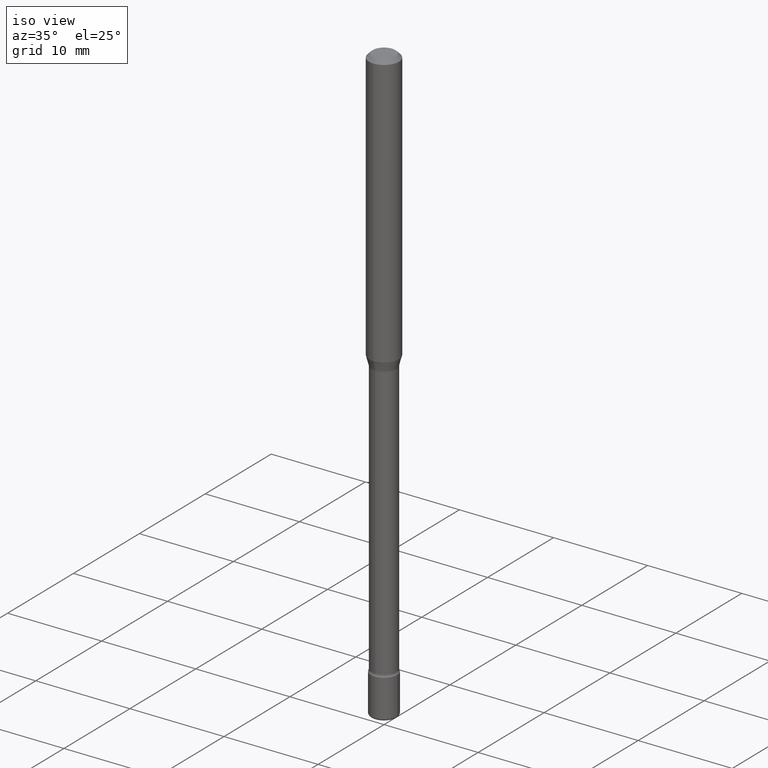
[diagram: clean part render]
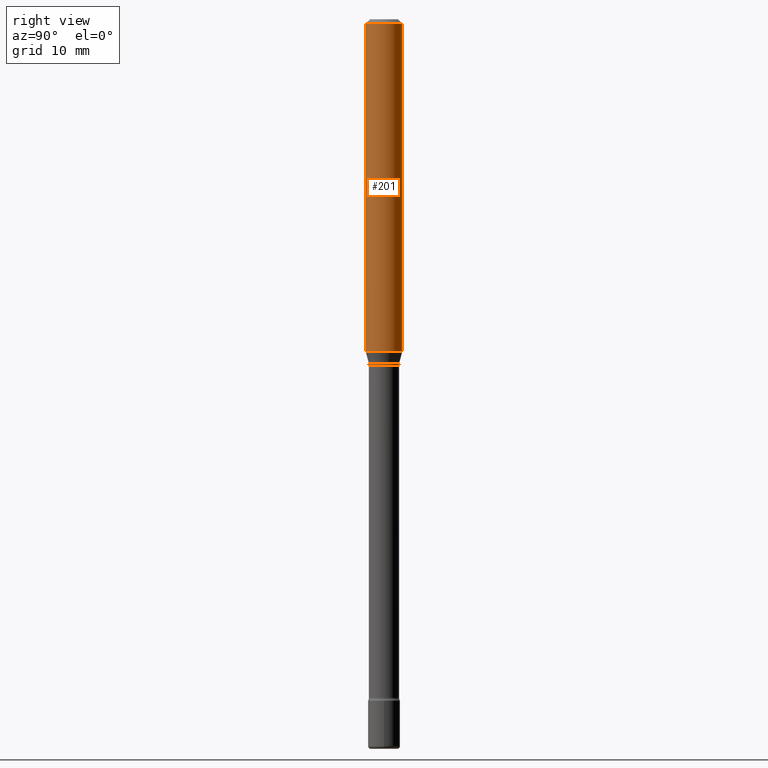
[diagram: tour spotlight — one face highlighted and labeled with its STEP entity id]
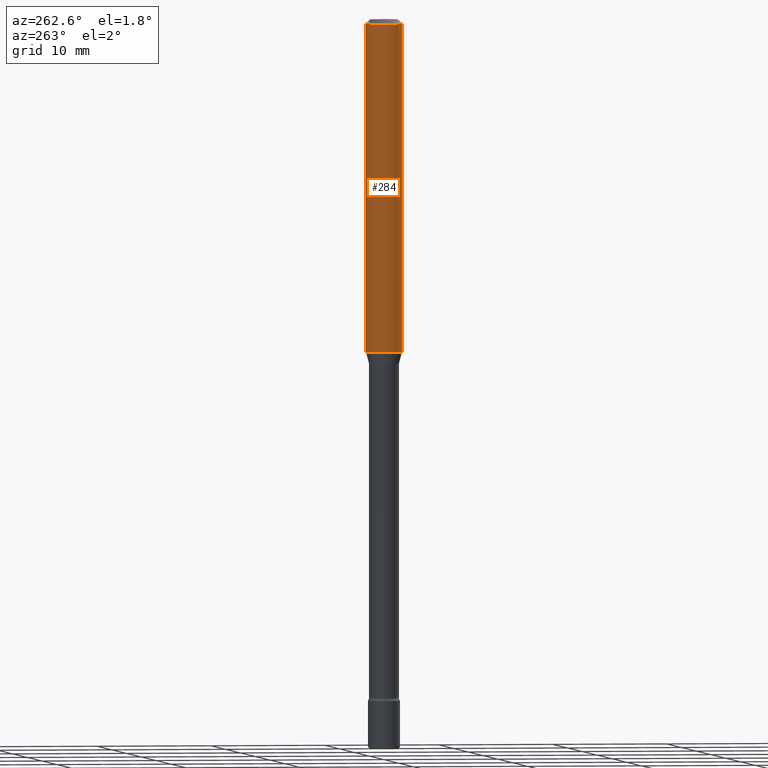
[diagram: tour spotlight — one face highlighted and labeled with its STEP entity id]
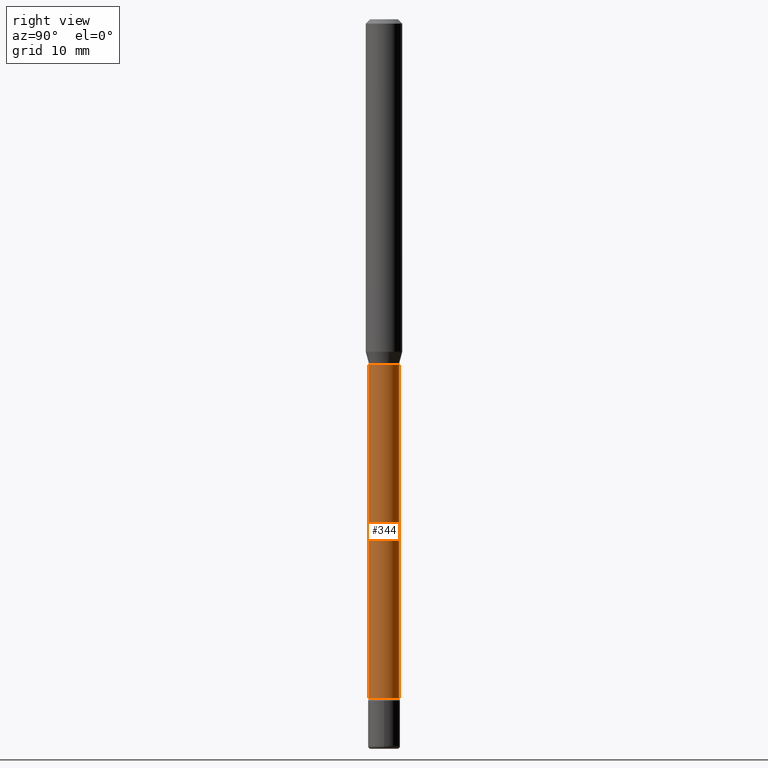
[diagram: tour spotlight — one face highlighted and labeled with its STEP entity id]
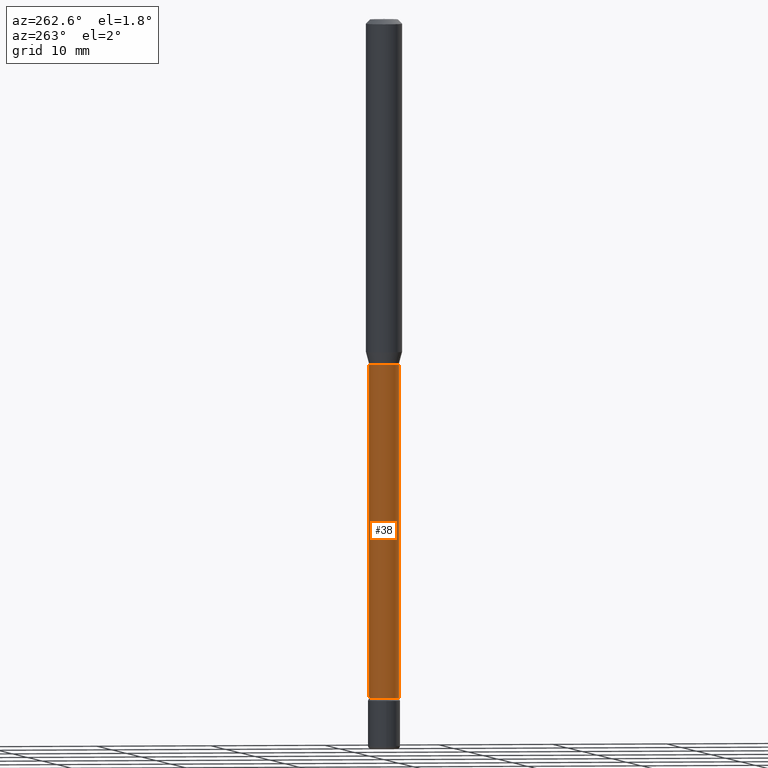
[diagram: tour spotlight — one face highlighted and labeled with its STEP entity id]
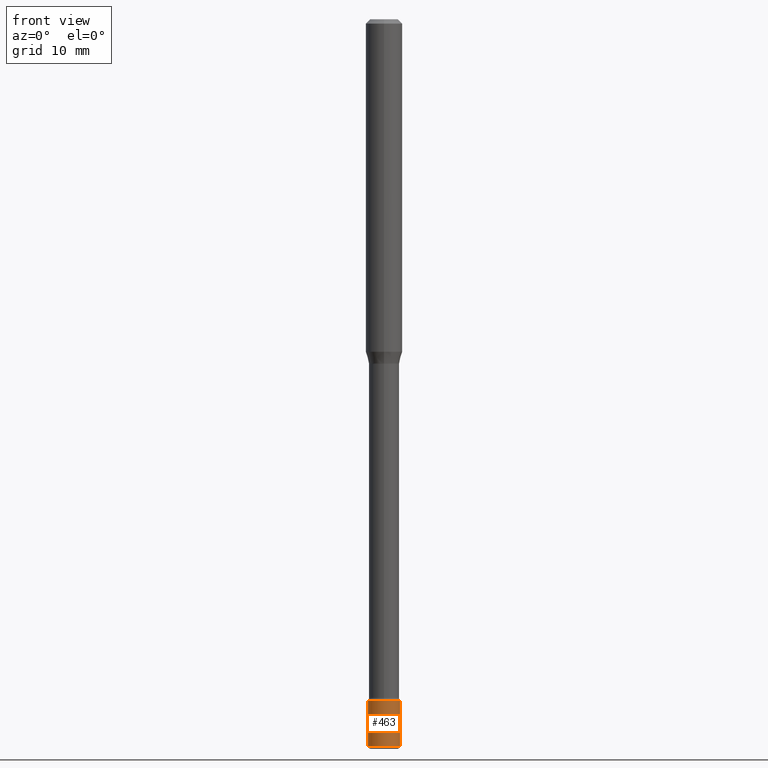
[diagram: tour spotlight — one face highlighted and labeled with its STEP entity id]
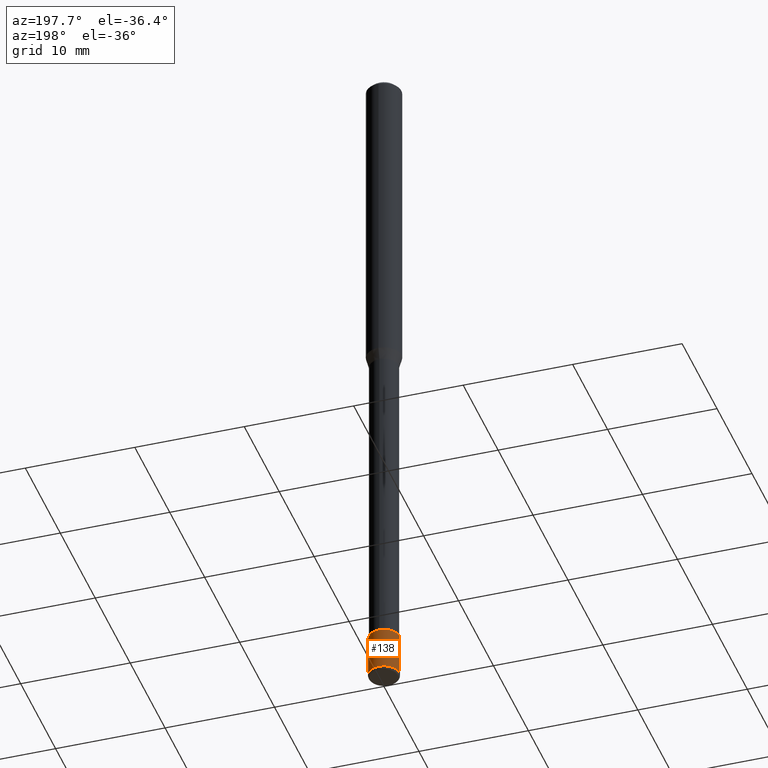
[diagram: tour spotlight — one face highlighted and labeled with its STEP entity id]
A machine part: a face-by-face anatomy tour. The part has 20 B-rep faces; the first image is the clean iso view, then the 6 largest visible faces are spotlighted one at a time (largest first), each with its STEP entity span.

Face 1 — right view, entity #201. In plain terms, the highlighted cylindrical surface (edge-blend (fillet) strip) has radius 1.5875 mm, axis along (-0, 0, 1).
Definition (entity closure, byte-faithful):
#1 = VECTOR ( 'NONE', #406, 39.37007874015748143 ) ;
#42 = AXIS2_PLACEMENT_3D ( 'NONE', #299, #296, #462 ) ;
#60 = VERTEX_POINT ( 'NONE', #187 ) ;
#73 = VECTOR ( 'NONE', #496, 39.37007874015748143 ) ;
#85 = DIRECTION ( 'NONE',  ( -2.445442429917292137E-29, 3.491519111159942797E-15, 1.000000000000000000 ) ) ;
#90 = EDGE_LOOP ( 'NONE', ( #164, #524, #333, #341 ) ) ;
#98 = EDGE_CURVE ( 'NONE', #60, #571, #300, .T. ) ;
#126 = EDGE_CURVE ( 'NONE', #571, #209, #308, .T. ) ;
#143 = EDGE_CURVE ( 'NONE', #60, #379, #179, .T. ) ;
#149 = CARTESIAN_POINT ( 'NONE',  ( 4.440892098500903249E-16, 0.06249999999999600320, -1.139693851278256398 ) ) ;
#164 = ORIENTED_EDGE ( 'NONE', *, *, #98, .T. ) ;
#179 = LINE ( 'NONE', #365, #73 ) ;
#187 = CARTESIAN_POINT ( 'NONE',  ( -4.364351673553638128E-16, -0.06250000000000399680, -1.139693851278255954 ) ) ;
#201 = ADVANCED_FACE ( 'NONE', ( #512 ), #231, .T. ) ;
#209 = VERTEX_POINT ( 'NONE', #276 ) ;
#231 = CYLINDRICAL_SURFACE ( 'NONE', #267, 0.06250000000000000000 ) ;
#264 = DIRECTION ( 'NONE',  ( -6.982962677686265922E-15, -1.000000000000000000, 3.483106191921935554E-15 ) ) ;
#267 = AXIS2_PLACEMENT_3D ( 'NONE', #372, #491, #519 ) ;
#276 = CARTESIAN_POINT ( 'NONE',  ( 4.440892098500906207E-16, 0.06249999999999993755, -0.01500000000000024578 ) ) ;
#278 = AXIS2_PLACEMENT_3D ( 'NONE', #353, #85, #264 ) ;
#296 = DIRECTION ( 'NONE',  ( -2.445442429917292137E-29, 3.491519111159942797E-15, 1.000000000000000000 ) ) ;
#299 = CARTESIAN_POINT ( 'NONE',  ( 2.787055701031695687E-29, -3.979262862609508660E-15, -1.139693851278256176 ) ) ;
#300 = CIRCLE ( 'NONE', #42, 0.06250000000000000000 ) ;
#308 = LINE ( 'NONE', #446, #1 ) ;
#327 = EDGE_CURVE ( 'NONE', #379, #209, #522, .T. ) ;
#333 = ORIENTED_EDGE ( 'NONE', *, *, #327, .F. ) ;
#341 = ORIENTED_EDGE ( 'NONE', *, *, #143, .F. ) ;
#353 = CARTESIAN_POINT ( 'NONE',  ( 3.668163644875944826E-31, -5.237278666739923958E-17, -0.01500000000000002720 ) ) ;
#365 = CARTESIAN_POINT ( 'NONE',  ( -4.364351673553916201E-16, -0.06250000000000000000, 6.962933433387425620E-16 ) ) ;
#372 = CARTESIAN_POINT ( 'NONE',  ( -1.169113584055446105E-44, 1.669184350826100908E-30, 4.780733988912460139E-16 ) ) ;
#379 = VERTEX_POINT ( 'NONE', #475 ) ;
#406 = DIRECTION ( 'NONE',  ( -2.445442429917292137E-29, 3.491519111159943192E-15, 1.000000000000000000 ) ) ;
#446 = CARTESIAN_POINT ( 'NONE',  ( 4.440892098500625669E-16, 0.06250000000000000000, 2.598534544437496137E-16 ) ) ;
#462 = DIRECTION ( 'NONE',  ( -6.982962677686265922E-15, -1.000000000000000000, 4.370956789862821150E-15 ) ) ;
#475 = CARTESIAN_POINT ( 'NONE',  ( -4.364351673553912750E-16, -0.06250000000000005551, -0.01499999999999981036 ) ) ;
#491 = DIRECTION ( 'NONE',  ( -2.445442429917292137E-29, 3.491519111159942797E-15, 1.000000000000000000 ) ) ;
#496 = DIRECTION ( 'NONE',  ( -2.445442429917292137E-29, 3.491519111159943192E-15, 1.000000000000000000 ) ) ;
#512 = FACE_OUTER_BOUND ( 'NONE', #90, .T. ) ;
#519 = DIRECTION ( 'NONE',  ( -6.982962677686265922E-15, -1.000000000000000000, 3.491519111159943586E-15 ) ) ;
#522 = CIRCLE ( 'NONE', #278, 0.06250000000000000000 ) ;
#524 = ORIENTED_EDGE ( 'NONE', *, *, #126, .T. ) ;
#571 = VERTEX_POINT ( 'NONE', #149 ) ;

Face 2 — auxiliary view, entity #284. In plain terms, the highlighted cylindrical surface (edge-blend (fillet) strip) has radius 1.5875 mm, axis along (-0, 0, 1).
Definition (entity closure, byte-faithful):
#1 = VECTOR ( 'NONE', #406, 39.37007874015748143 ) ;
#9 = DIRECTION ( 'NONE',  ( -2.445442429917292137E-29, 3.491519111159942797E-15, 1.000000000000000000 ) ) ;
#35 = CARTESIAN_POINT ( 'NONE',  ( -1.169113584055446105E-44, 1.669184350826100908E-30, 4.780733988912460139E-16 ) ) ;
#60 = VERTEX_POINT ( 'NONE', #187 ) ;
#73 = VECTOR ( 'NONE', #496, 39.37007874015748143 ) ;
#97 = CARTESIAN_POINT ( 'NONE',  ( 2.787055701031695687E-29, -3.979262862609508660E-15, -1.139693851278256176 ) ) ;
#105 = DIRECTION ( 'NONE',  ( -6.982962677686265922E-15, -1.000000000000000000, 3.483106191921935554E-15 ) ) ;
#126 = EDGE_CURVE ( 'NONE', #571, #209, #308, .T. ) ;
#143 = EDGE_CURVE ( 'NONE', #60, #379, #179, .T. ) ;
#145 = ORIENTED_EDGE ( 'NONE', *, *, #176, .F. ) ;
#149 = CARTESIAN_POINT ( 'NONE',  ( 4.440892098500903249E-16, 0.06249999999999600320, -1.139693851278256398 ) ) ;
#150 = ORIENTED_EDGE ( 'NONE', *, *, #143, .T. ) ;
#154 = DIRECTION ( 'NONE',  ( -2.445442429917292137E-29, 3.491519111159942797E-15, 1.000000000000000000 ) ) ;
#168 = DIRECTION ( 'NONE',  ( -6.982962677686265922E-15, -1.000000000000000000, 3.491519111159943586E-15 ) ) ;
#172 = CYLINDRICAL_SURFACE ( 'NONE', #328, 0.06250000000000000000 ) ;
#176 = EDGE_CURVE ( 'NONE', #209, #379, #404, .T. ) ;
#179 = LINE ( 'NONE', #365, #73 ) ;
#187 = CARTESIAN_POINT ( 'NONE',  ( -4.364351673553638128E-16, -0.06250000000000399680, -1.139693851278255954 ) ) ;
#191 = DIRECTION ( 'NONE',  ( -6.982962677686265922E-15, -1.000000000000000000, 4.370956789862821150E-15 ) ) ;
#209 = VERTEX_POINT ( 'NONE', #276 ) ;
#217 = FACE_OUTER_BOUND ( 'NONE', #489, .T. ) ;
#223 = CIRCLE ( 'NONE', #523, 0.06250000000000000000 ) ;
#248 = ORIENTED_EDGE ( 'NONE', *, *, #126, .F. ) ;
#276 = CARTESIAN_POINT ( 'NONE',  ( 4.440892098500906207E-16, 0.06249999999999993755, -0.01500000000000024578 ) ) ;
#284 = ADVANCED_FACE ( 'NONE', ( #217 ), #172, .T. ) ;
#308 = LINE ( 'NONE', #446, #1 ) ;
#328 = AXIS2_PLACEMENT_3D ( 'NONE', #35, #387, #168 ) ;
#365 = CARTESIAN_POINT ( 'NONE',  ( -4.364351673553916201E-16, -0.06250000000000000000, 6.962933433387425620E-16 ) ) ;
#379 = VERTEX_POINT ( 'NONE', #475 ) ;
#387 = DIRECTION ( 'NONE',  ( -2.445442429917292137E-29, 3.491519111159942797E-15, 1.000000000000000000 ) ) ;
#404 = CIRCLE ( 'NONE', #488, 0.06250000000000000000 ) ;
#406 = DIRECTION ( 'NONE',  ( -2.445442429917292137E-29, 3.491519111159943192E-15, 1.000000000000000000 ) ) ;
#446 = CARTESIAN_POINT ( 'NONE',  ( 4.440892098500625669E-16, 0.06250000000000000000, 2.598534544437496137E-16 ) ) ;
#457 = ORIENTED_EDGE ( 'NONE', *, *, #510, .T. ) ;
#475 = CARTESIAN_POINT ( 'NONE',  ( -4.364351673553912750E-16, -0.06250000000000005551, -0.01499999999999981036 ) ) ;
#488 = AXIS2_PLACEMENT_3D ( 'NONE', #490, #154, #105 ) ;
#489 = EDGE_LOOP ( 'NONE', ( #248, #457, #150, #145 ) ) ;
#490 = CARTESIAN_POINT ( 'NONE',  ( 3.668163644875944826E-31, -5.237278666739923958E-17, -0.01500000000000002720 ) ) ;
#496 = DIRECTION ( 'NONE',  ( -2.445442429917292137E-29, 3.491519111159943192E-15, 1.000000000000000000 ) ) ;
#510 = EDGE_CURVE ( 'NONE', #571, #60, #223, .T. ) ;
#523 = AXIS2_PLACEMENT_3D ( 'NONE', #97, #9, #191 ) ;
#571 = VERTEX_POINT ( 'NONE', #149 ) ;

Face 3 — right view, entity #344. In plain terms, the highlighted cylindrical surface (edge-blend (fillet) strip) has radius 1.3132 mm, axis along (-0, 0, 1).
Definition (entity closure, byte-faithful):
#18 = VERTEX_POINT ( 'NONE', #88 ) ;
#32 = AXIS2_PLACEMENT_3D ( 'NONE', #99, #483, #548 ) ;
#58 = EDGE_CURVE ( 'NONE', #479, #102, #158, .T. ) ;
#66 = ORIENTED_EDGE ( 'NONE', *, *, #549, .T. ) ;
#79 = DIRECTION ( 'NONE',  ( -2.445442429917292137E-29, 3.491519111159942797E-15, 1.000000000000000000 ) ) ;
#88 = CARTESIAN_POINT ( 'NONE',  ( -3.610191704363230083E-16, -0.05170000000000810753, -2.325613307291702458 ) ) ;
#93 = LINE ( 'NONE', #443, #167 ) ;
#99 = CARTESIAN_POINT ( 'NONE',  ( 2.890451296356476117E-29, -4.126887559339106472E-15, -1.181974787463810683 ) ) ;
#102 = VERTEX_POINT ( 'NONE', #304 ) ;
#113 = CARTESIAN_POINT ( 'NONE',  ( 5.687153457231412235E-29, -8.119923307576861292E-15, -2.325613307291702903 ) ) ;
#115 = EDGE_CURVE ( 'NONE', #18, #285, #431, .T. ) ;
#121 = FACE_OUTER_BOUND ( 'NONE', #412, .T. ) ;
#122 = DIRECTION ( 'NONE',  ( -6.982962677686266711E-15, -1.000000000000000000, 5.284038672464726492E-15 ) ) ;
#158 = CIRCLE ( 'NONE', #32, 0.05169999999999999596 ) ;
#159 = AXIS2_PLACEMENT_3D ( 'NONE', #562, #79, #256 ) ;
#163 = DIRECTION ( 'NONE',  ( -2.445442429917292137E-29, 3.491519111159943192E-15, 1.000000000000000000 ) ) ;
#167 = VECTOR ( 'NONE', #274, 39.37007874015748143 ) ;
#177 = LINE ( 'NONE', #384, #302 ) ;
#256 = DIRECTION ( 'NONE',  ( -6.982962677686266711E-15, -1.000000000000000000, 3.491519111159944375E-15 ) ) ;
#274 = DIRECTION ( 'NONE',  ( -2.445442429917292137E-29, 3.491519111159943192E-15, 1.000000000000000000 ) ) ;
#285 = VERTEX_POINT ( 'NONE', #474 ) ;
#288 = ORIENTED_EDGE ( 'NONE', *, *, #115, .T. ) ;
#302 = VECTOR ( 'NONE', #163, 39.37007874015748143 ) ;
#304 = CARTESIAN_POINT ( 'NONE',  ( 3.673505943880288119E-16, 0.05169999999999587426, -1.181974787463810905 ) ) ;
#344 = ADVANCED_FACE ( 'NONE', ( #121 ), #466, .T. ) ;
#384 = CARTESIAN_POINT ( 'NONE',  ( 3.673505943879716688E-16, 0.05169999999999998902, 2.975618608442770603E-16 ) ) ;
#412 = EDGE_LOOP ( 'NONE', ( #288, #66, #511, #419 ) ) ;
#419 = ORIENTED_EDGE ( 'NONE', *, *, #433, .F. ) ;
#431 = CIRCLE ( 'NONE', #464, 0.05169999999999998902 ) ;
#433 = EDGE_CURVE ( 'NONE', #18, #479, #93, .T. ) ;
#443 = CARTESIAN_POINT ( 'NONE',  ( -3.610191704363799049E-16, -0.05169999999999998902, 6.585849369382151154E-16 ) ) ;
#464 = AXIS2_PLACEMENT_3D ( 'NONE', #113, #515, #122 ) ;
#466 = CYLINDRICAL_SURFACE ( 'NONE', #159, 0.05169999999999998902 ) ;
#474 = CARTESIAN_POINT ( 'NONE',  ( 3.790745495280705543E-16, 0.05169999999999187051, -2.325613307291702903 ) ) ;
#479 = VERTEX_POINT ( 'NONE', #534 ) ;
#483 = DIRECTION ( 'NONE',  ( -2.445442429917292137E-29, 3.491519111159942797E-15, 1.000000000000000000 ) ) ;
#511 = ORIENTED_EDGE ( 'NONE', *, *, #58, .F. ) ;
#515 = DIRECTION ( 'NONE',  ( -2.445442429917292137E-29, 3.491519111159942797E-15, 1.000000000000000000 ) ) ;
#534 = CARTESIAN_POINT ( 'NONE',  ( -3.610191704363510622E-16, -0.05170000000000412460, -1.181974787463810683 ) ) ;
#548 = DIRECTION ( 'NONE',  ( -6.982962677686266711E-15, -1.000000000000000000, 2.642019336232363246E-15 ) ) ;
#549 = EDGE_CURVE ( 'NONE', #285, #102, #177, .T. ) ;
#562 = CARTESIAN_POINT ( 'NONE',  ( -1.169113584055446105E-44, 1.669184350826100908E-30, 4.780733988912460139E-16 ) ) ;

Face 4 — auxiliary view, entity #38. In plain terms, the highlighted cylindrical surface (edge-blend (fillet) strip) has radius 1.3132 mm, axis along (-0, 0, 1).
Definition (entity closure, byte-faithful):
#2 = CYLINDRICAL_SURFACE ( 'NONE', #72, 0.05169999999999998902 ) ;
#10 = ORIENTED_EDGE ( 'NONE', *, *, #354, .T. ) ;
#18 = VERTEX_POINT ( 'NONE', #88 ) ;
#31 = DIRECTION ( 'NONE',  ( -2.445442429917292137E-29, 3.491519111159942797E-15, 1.000000000000000000 ) ) ;
#38 = ADVANCED_FACE ( 'NONE', ( #129 ), #2, .T. ) ;
#72 = AXIS2_PLACEMENT_3D ( 'NONE', #184, #84, #435 ) ;
#84 = DIRECTION ( 'NONE',  ( -2.445442429917292137E-29, 3.491519111159942797E-15, 1.000000000000000000 ) ) ;
#88 = CARTESIAN_POINT ( 'NONE',  ( -3.610191704363230083E-16, -0.05170000000000810753, -2.325613307291702458 ) ) ;
#93 = LINE ( 'NONE', #443, #167 ) ;
#102 = VERTEX_POINT ( 'NONE', #304 ) ;
#129 = FACE_OUTER_BOUND ( 'NONE', #555, .T. ) ;
#147 = CIRCLE ( 'NONE', #207, 0.05169999999999999596 ) ;
#163 = DIRECTION ( 'NONE',  ( -2.445442429917292137E-29, 3.491519111159943192E-15, 1.000000000000000000 ) ) ;
#167 = VECTOR ( 'NONE', #274, 39.37007874015748143 ) ;
#177 = LINE ( 'NONE', #384, #302 ) ;
#184 = CARTESIAN_POINT ( 'NONE',  ( -1.169113584055446105E-44, 1.669184350826100908E-30, 4.780733988912460139E-16 ) ) ;
#202 = ORIENTED_EDGE ( 'NONE', *, *, #549, .F. ) ;
#207 = AXIS2_PLACEMENT_3D ( 'NONE', #348, #467, #566 ) ;
#228 = EDGE_CURVE ( 'NONE', #102, #479, #147, .T. ) ;
#229 = AXIS2_PLACEMENT_3D ( 'NONE', #254, #31, #303 ) ;
#254 = CARTESIAN_POINT ( 'NONE',  ( 5.687153457231412235E-29, -8.119923307576861292E-15, -2.325613307291702903 ) ) ;
#274 = DIRECTION ( 'NONE',  ( -2.445442429917292137E-29, 3.491519111159943192E-15, 1.000000000000000000 ) ) ;
#285 = VERTEX_POINT ( 'NONE', #474 ) ;
#302 = VECTOR ( 'NONE', #163, 39.37007874015748143 ) ;
#303 = DIRECTION ( 'NONE',  ( -6.982962677686266711E-15, -1.000000000000000000, 5.284038672464726492E-15 ) ) ;
#304 = CARTESIAN_POINT ( 'NONE',  ( 3.673505943880288119E-16, 0.05169999999999587426, -1.181974787463810905 ) ) ;
#348 = CARTESIAN_POINT ( 'NONE',  ( 2.890451296356476117E-29, -4.126887559339106472E-15, -1.181974787463810683 ) ) ;
#354 = EDGE_CURVE ( 'NONE', #285, #18, #441, .T. ) ;
#384 = CARTESIAN_POINT ( 'NONE',  ( 3.673505943879716688E-16, 0.05169999999999998902, 2.975618608442770603E-16 ) ) ;
#433 = EDGE_CURVE ( 'NONE', #18, #479, #93, .T. ) ;
#435 = DIRECTION ( 'NONE',  ( -6.982962677686266711E-15, -1.000000000000000000, 3.491519111159944375E-15 ) ) ;
#441 = CIRCLE ( 'NONE', #229, 0.05169999999999998902 ) ;
#443 = CARTESIAN_POINT ( 'NONE',  ( -3.610191704363799049E-16, -0.05169999999999998902, 6.585849369382151154E-16 ) ) ;
#455 = ORIENTED_EDGE ( 'NONE', *, *, #228, .F. ) ;
#467 = DIRECTION ( 'NONE',  ( -2.445442429917292137E-29, 3.491519111159942797E-15, 1.000000000000000000 ) ) ;
#474 = CARTESIAN_POINT ( 'NONE',  ( 3.790745495280705543E-16, 0.05169999999999187051, -2.325613307291702903 ) ) ;
#479 = VERTEX_POINT ( 'NONE', #534 ) ;
#534 = CARTESIAN_POINT ( 'NONE',  ( -3.610191704363510622E-16, -0.05170000000000412460, -1.181974787463810683 ) ) ;
#537 = ORIENTED_EDGE ( 'NONE', *, *, #433, .T. ) ;
#549 = EDGE_CURVE ( 'NONE', #285, #102, #177, .T. ) ;
#555 = EDGE_LOOP ( 'NONE', ( #202, #10, #537, #455 ) ) ;
#566 = DIRECTION ( 'NONE',  ( -6.982962677686266711E-15, -1.000000000000000000, 2.642019336232363246E-15 ) ) ;

Face 5 — front view, entity #463. In plain terms, the highlighted cylindrical surface (edge-blend (fillet) strip) has radius 1.397 mm, axis along (-0, 0, 1).
Definition (entity closure, byte-faithful):
#36 = EDGE_CURVE ( 'NONE', #495, #198, #92, .T. ) ;
#41 = LINE ( 'NONE', #221, #358 ) ;
#48 = DIRECTION ( 'NONE',  ( -2.445468806185136877E-29, 3.491481338843145188E-15, 1.000000000000000000 ) ) ;
#53 = AXIS2_PLACEMENT_3D ( 'NONE', #173, #525, #307 ) ;
#67 = EDGE_LOOP ( 'NONE', ( #290, #568, #423, #376 ) ) ;
#75 = EDGE_CURVE ( 'NONE', #495, #504, #206, .T. ) ;
#92 = LINE ( 'NONE', #272, #538 ) ;
#95 = CARTESIAN_POINT ( 'NONE',  ( 0.05500000000000000028, -8.536671873471490084E-15, -2.334999999999999964 ) ) ;
#142 = CARTESIAN_POINT ( 'NONE',  ( 6.089217327400989947E-29, -8.693788533719431716E-15, -2.489999999999999769 ) ) ;
#173 = CARTESIAN_POINT ( 'NONE',  ( 5.710169662442294357E-29, -8.152608926198745099E-15, -2.334999999999999964 ) ) ;
#190 = DIRECTION ( 'NONE',  ( -2.445468806185136597E-29, 3.491481338843145583E-15, 1.000000000000000000 ) ) ;
#198 = VERTEX_POINT ( 'NONE', #349 ) ;
#206 = CIRCLE ( 'NONE', #521, 0.05500000000000001416 ) ;
#219 = DIRECTION ( 'NONE',  ( -2.445468806185136877E-29, 3.491481338843145188E-15, 1.000000000000000000 ) ) ;
#221 = CARTESIAN_POINT ( 'NONE',  ( 0.05500000000000001416, -3.840629472727447381E-16, 2.681897226687765177E-30 ) ) ;
#249 = EDGE_CURVE ( 'NONE', #198, #458, #563, .T. ) ;
#272 = CARTESIAN_POINT ( 'NONE',  ( -0.05500000000000001416, 3.907985046680552028E-16, -2.705414299640198712E-30 ) ) ;
#290 = ORIENTED_EDGE ( 'NONE', *, *, #36, .F. ) ;
#307 = DIRECTION ( 'NONE',  ( 1.000000000000000000, -6.982962677686262766E-15, 0.000000000000000000 ) ) ;
#326 = CARTESIAN_POINT ( 'NONE',  ( 0.05500000000000004191, -9.077851480992175123E-15, -2.489999999999999769 ) ) ;
#332 = EDGE_CURVE ( 'NONE', #504, #458, #41, .T. ) ;
#349 = CARTESIAN_POINT ( 'NONE',  ( -0.05500000000000000028, -8.032400225291033747E-15, -2.334999999999999964 ) ) ;
#358 = VECTOR ( 'NONE', #219, 39.37007874015748143 ) ;
#370 = FACE_OUTER_BOUND ( 'NONE', #67, .T. ) ;
#371 = CARTESIAN_POINT ( 'NONE',  ( -0.05500000000000004191, -8.302990029051375478E-15, -2.489999999999999769 ) ) ;
#376 = ORIENTED_EDGE ( 'NONE', *, *, #249, .F. ) ;
#389 = AXIS2_PLACEMENT_3D ( 'NONE', #572, #567, #451 ) ;
#423 = ORIENTED_EDGE ( 'NONE', *, *, #332, .T. ) ;
#445 = CYLINDRICAL_SURFACE ( 'NONE', #389, 0.05500000000000001416 ) ;
#451 = DIRECTION ( 'NONE',  ( 1.000000000000000000, -6.982962677686265922E-15, 4.876176775795935232E-29 ) ) ;
#458 = VERTEX_POINT ( 'NONE', #95 ) ;
#463 = ADVANCED_FACE ( 'NONE', ( #370 ), #445, .T. ) ;
#495 = VERTEX_POINT ( 'NONE', #371 ) ;
#497 = DIRECTION ( 'NONE',  ( 1.000000000000000000, -6.982962677686260400E-15, 0.000000000000000000 ) ) ;
#504 = VERTEX_POINT ( 'NONE', #326 ) ;
#521 = AXIS2_PLACEMENT_3D ( 'NONE', #142, #190, #497 ) ;
#525 = DIRECTION ( 'NONE',  ( -2.445468806185136597E-29, 3.491481338843145583E-15, 1.000000000000000000 ) ) ;
#538 = VECTOR ( 'NONE', #48, 39.37007874015748143 ) ;
#563 = CIRCLE ( 'NONE', #53, 0.05500000000000000028 ) ;
#567 = DIRECTION ( 'NONE',  ( -2.445468806185136597E-29, 3.491481338843145583E-15, 1.000000000000000000 ) ) ;
#568 = ORIENTED_EDGE ( 'NONE', *, *, #75, .T. ) ;
#572 = CARTESIAN_POINT ( 'NONE',  ( 0.000000000000000000, 0.000000000000000000, 0.000000000000000000 ) ) ;

Face 6 — auxiliary view, entity #138. In plain terms, the highlighted cylindrical surface (edge-blend (fillet) strip) has radius 1.397 mm, axis along (-0, 0, 1).
Definition (entity closure, byte-faithful):
#4 = ORIENTED_EDGE ( 'NONE', *, *, #398, .F. ) ;
#7 = CARTESIAN_POINT ( 'NONE',  ( 0.000000000000000000, 0.000000000000000000, 0.000000000000000000 ) ) ;
#16 = DIRECTION ( 'NONE',  ( 1.000000000000000000, -6.982962677686260400E-15, 0.000000000000000000 ) ) ;
#22 = EDGE_LOOP ( 'NONE', ( #155, #542, #4, #547 ) ) ;
#36 = EDGE_CURVE ( 'NONE', #495, #198, #92, .T. ) ;
#41 = LINE ( 'NONE', #221, #358 ) ;
#48 = DIRECTION ( 'NONE',  ( -2.445468806185136877E-29, 3.491481338843145188E-15, 1.000000000000000000 ) ) ;
#52 = DIRECTION ( 'NONE',  ( -2.445468806185136597E-29, 3.491481338843145583E-15, 1.000000000000000000 ) ) ;
#92 = LINE ( 'NONE', #272, #538 ) ;
#94 = FACE_OUTER_BOUND ( 'NONE', #22, .T. ) ;
#95 = CARTESIAN_POINT ( 'NONE',  ( 0.05500000000000000028, -8.536671873471490084E-15, -2.334999999999999964 ) ) ;
#138 = ADVANCED_FACE ( 'NONE', ( #94 ), #275, .T. ) ;
#144 = DIRECTION ( 'NONE',  ( 1.000000000000000000, -6.982962677686262766E-15, 0.000000000000000000 ) ) ;
#155 = ORIENTED_EDGE ( 'NONE', *, *, #170, .T. ) ;
#170 = EDGE_CURVE ( 'NONE', #504, #495, #394, .T. ) ;
#174 = AXIS2_PLACEMENT_3D ( 'NONE', #7, #52, #569 ) ;
#185 = CARTESIAN_POINT ( 'NONE',  ( 5.710169662442294357E-29, -8.152608926198745099E-15, -2.334999999999999964 ) ) ;
#195 = CIRCLE ( 'NONE', #551, 0.05500000000000000028 ) ;
#198 = VERTEX_POINT ( 'NONE', #349 ) ;
#219 = DIRECTION ( 'NONE',  ( -2.445468806185136877E-29, 3.491481338843145188E-15, 1.000000000000000000 ) ) ;
#221 = CARTESIAN_POINT ( 'NONE',  ( 0.05500000000000001416, -3.840629472727447381E-16, 2.681897226687765177E-30 ) ) ;
#272 = CARTESIAN_POINT ( 'NONE',  ( -0.05500000000000001416, 3.907985046680552028E-16, -2.705414299640198712E-30 ) ) ;
#275 = CYLINDRICAL_SURFACE ( 'NONE', #174, 0.05500000000000001416 ) ;
#281 = CARTESIAN_POINT ( 'NONE',  ( 6.089217327400989947E-29, -8.693788533719431716E-15, -2.489999999999999769 ) ) ;
#326 = CARTESIAN_POINT ( 'NONE',  ( 0.05500000000000004191, -9.077851480992175123E-15, -2.489999999999999769 ) ) ;
#332 = EDGE_CURVE ( 'NONE', #504, #458, #41, .T. ) ;
#349 = CARTESIAN_POINT ( 'NONE',  ( -0.05500000000000000028, -8.032400225291033747E-15, -2.334999999999999964 ) ) ;
#358 = VECTOR ( 'NONE', #219, 39.37007874015748143 ) ;
#367 = DIRECTION ( 'NONE',  ( -2.445468806185136597E-29, 3.491481338843145583E-15, 1.000000000000000000 ) ) ;
#371 = CARTESIAN_POINT ( 'NONE',  ( -0.05500000000000004191, -8.302990029051375478E-15, -2.489999999999999769 ) ) ;
#394 = CIRCLE ( 'NONE', #448, 0.05500000000000001416 ) ;
#398 = EDGE_CURVE ( 'NONE', #458, #198, #195, .T. ) ;
#448 = AXIS2_PLACEMENT_3D ( 'NONE', #281, #545, #16 ) ;
#458 = VERTEX_POINT ( 'NONE', #95 ) ;
#495 = VERTEX_POINT ( 'NONE', #371 ) ;
#504 = VERTEX_POINT ( 'NONE', #326 ) ;
#538 = VECTOR ( 'NONE', #48, 39.37007874015748143 ) ;
#542 = ORIENTED_EDGE ( 'NONE', *, *, #36, .T. ) ;
#545 = DIRECTION ( 'NONE',  ( -2.445468806185136597E-29, 3.491481338843145583E-15, 1.000000000000000000 ) ) ;
#547 = ORIENTED_EDGE ( 'NONE', *, *, #332, .F. ) ;
#551 = AXIS2_PLACEMENT_3D ( 'NONE', #185, #367, #144 ) ;
#569 = DIRECTION ( 'NONE',  ( 1.000000000000000000, -6.982962677686265922E-15, 4.876176775795935232E-29 ) ) ;